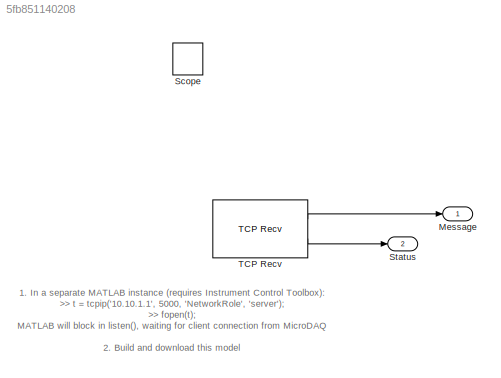
MODEL slx_5fb851140208
KIND model
BLOCK [Outport] Message
  IconDisplay = Port number
BLOCK [SignalViewerScope] Scope
  DataFormat = StructureWithTime
  Decimation = 1
  Grid = on
  IOType = viewer
  LimitDataPoints = on
  MaxDataPoints = 5000
  NumInputPorts = 2
  Ports = []
  SampleInput = off
  SampleTime = -1
  SaveName = ScopeData
  SaveToWorkspace = off
  ShowLegends = off
  TickLabels = OneTimeTick
  TimeRange = auto
  YMax = 1~20
  YMin = -1~-20
  ZoomMode = on
BLOCK [Outport] Status
  IconDisplay = Port number
  Port = 2
BLOCK [Reference] TCP Recv  REF=microdaq_lib/Network/TCP Recv  (lib defined in slx_912f07ce28e3)
  Blocking = off
  Datatype = double
  IPAddrStr = '10.10.1.10'
  Port = 5000
  Ports = [0, 2]
  SampleTime = -1
  SizePack = 1
  SourceBlock = microdaq_lib/Network/TCP Recv
  SourceType = TCP/IP Recv
  Timeout = 250
ANNOTATION (root): 1. In a separate MATLAB instance (requires Instrument Control Toolbox): >> t = tcpip('10.10.1.1', 5000, 'NetworkRole', 'server'); >> fopen(t); MATLAB will block in listen(), waiting for client connection from MicroDAQ 2. Build and download this model 3. In the separate MATLAB (which will accept() client connection and unblock command line by this time): >> for x=0:0.1:2*pi data = swapbytes(typecas...<+54ch>
LINE TCP Recv:1 -> Message:1
LINE TCP Recv:2 -> Status:1
